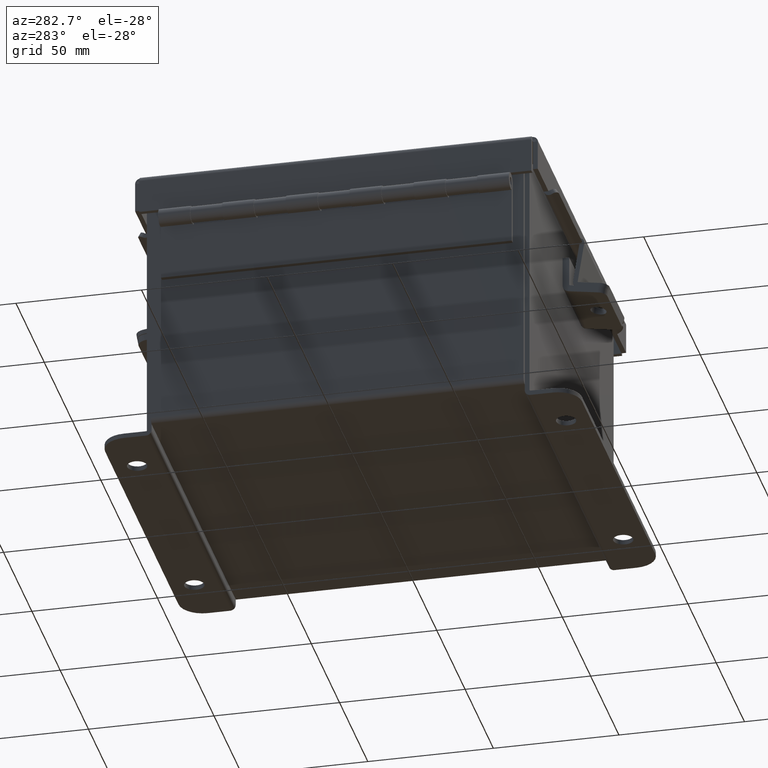
[diagram: clean part render]
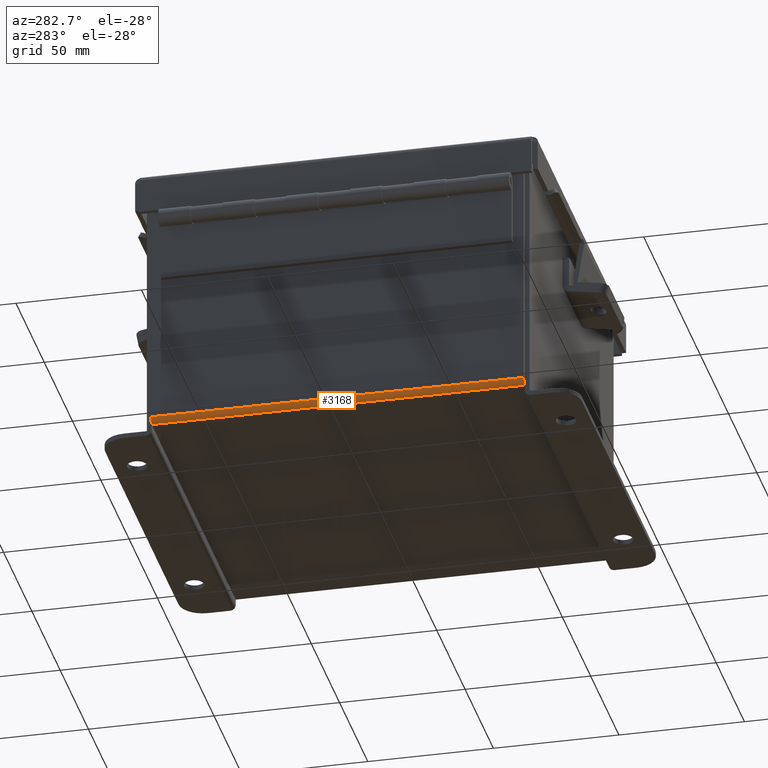
[diagram: same view with one face highlighted and labeled with its STEP entity id]
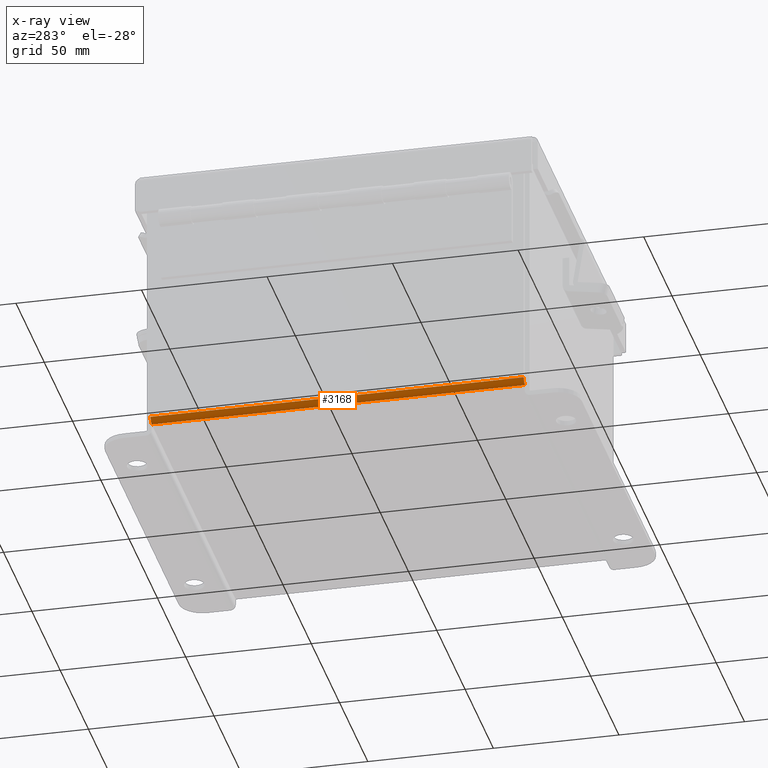
[diagram: x-ray of the same camera — body ghosted, the highlighted face saturated]
A machine part, auxiliary view. The second image highlights one B-rep face of the part: STEP entity #3168.
The next image is the same camera in x-ray: the body ghosted, the highlighted face saturated — about 0% of this face is hidden behind the body in this view.
In plain terms, the highlighted cylindrical surface (edge-blend (fillet) strip) has radius 2.2276 mm, axis along (0, -1, 0).
Its self-contained STEP definition (entity closure, byte-faithful):
#78 = CARTESIAN_POINT ( 'NONE',  ( -2.912299999999998800, -2.925299999999999600, 0.01300000000000066600 ) ) ;
#372 = CARTESIAN_POINT ( 'NONE',  ( -2.999999999999999100, 2.925300000000000500, 0.01299999999999984700 ) ) ;
#650 = CARTESIAN_POINT ( 'NONE',  ( -2.912299999999998800, 2.925300000000000500, 0.01300000000000018700 ) ) ;
#1169 = DIRECTION ( 'NONE',  ( -1.000000000000000000, 0.0000000000000000000, -3.553037762569317100E-015 ) ) ;
#1652 = CARTESIAN_POINT ( 'NONE',  ( -2.912299999999998800, -2.925299999999999100, 0.01300000000000066600 ) ) ;
#1749 = DIRECTION ( 'NONE',  ( 0.0000000000000000000, 0.0000000000000000000, -1.000000000000000000 ) ) ;
#2752 = DIRECTION ( 'NONE',  ( 0.0000000000000000000, 0.0000000000000000000, -1.000000000000000000 ) ) ;
#3117 = LINE ( 'NONE', #372, #4476 ) ;
#3168 = ADVANCED_FACE ( 'NONE', ( #4890 ), #4538, .T. ) ;
#3808 = ORIENTED_EDGE ( 'NONE', *, *, #10770, .F. ) ;
#4271 = CARTESIAN_POINT ( 'NONE',  ( -2.912299999999998800, 2.925300000000000500, -0.07470000000000000300 ) ) ;
#4476 = VECTOR ( 'NONE', #10214, 39.37007874015748100 ) ;
#4532 = EDGE_CURVE ( 'NONE', #12079, #11051, #10891, .T. ) ;
#4538 = CYLINDRICAL_SURFACE ( 'NONE', #12437, 0.08770000000000026400 ) ;
#4585 = CARTESIAN_POINT ( 'NONE',  ( -2.912299999999998800, -2.925299999999999600, -0.07469999999999943400 ) ) ;
#4890 = FACE_OUTER_BOUND ( 'NONE', #12332, .T. ) ;
#5637 = ORIENTED_EDGE ( 'NONE', *, *, #4532, .F. ) ;
#5793 = AXIS2_PLACEMENT_3D ( 'NONE', #1652, #9349, #2752 ) ;
#5986 = EDGE_CURVE ( 'NONE', #11129, #7544, #3117, .T. ) ;
#6163 = EDGE_CURVE ( 'NONE', #11051, #7544, #12381, .T. ) ;
#7544 = VERTEX_POINT ( 'NONE', #11810 ) ;
#7758 = DIRECTION ( 'NONE',  ( 0.0000000000000000000, -1.000000000000000000, 8.208677865577646300E-017 ) ) ;
#7997 = CARTESIAN_POINT ( 'NONE',  ( -2.912299999999998800, -2.925299999999999100, -0.07469999999999943400 ) ) ;
#8333 = DIRECTION ( 'NONE',  ( -0.0000000000000000000, 1.000000000000000000, -8.208677865577646300E-017 ) ) ;
#8347 = CARTESIAN_POINT ( 'NONE',  ( -2.999999999999999100, -2.925299999999999100, 0.01300000000000039300 ) ) ;
#8703 = AXIS2_PLACEMENT_3D ( 'NONE', #650, #8333, #1749 ) ;
#9349 = DIRECTION ( 'NONE',  ( 0.0000000000000000000, -1.000000000000000000, 8.208677865577646300E-017 ) ) ;
#10214 = DIRECTION ( 'NONE',  ( 3.312716323822492500E-031, 1.000000000000000000, -9.338693445678268600E-017 ) ) ;
#10329 = DIRECTION ( 'NONE',  ( -0.0000000000000000000, 1.000000000000000000, -8.208677865577646300E-017 ) ) ;
#10364 = CIRCLE ( 'NONE', #5793, 0.08770000000000009700 ) ;
#10394 = ORIENTED_EDGE ( 'NONE', *, *, #6163, .F. ) ;
#10702 = ORIENTED_EDGE ( 'NONE', *, *, #5986, .T. ) ;
#10770 = EDGE_CURVE ( 'NONE', #11129, #12079, #10364, .T. ) ;
#10891 = LINE ( 'NONE', #4585, #12419 ) ;
#11051 = VERTEX_POINT ( 'NONE', #4271 ) ;
#11129 = VERTEX_POINT ( 'NONE', #8347 ) ;
#11810 = CARTESIAN_POINT ( 'NONE',  ( -2.999999999999999100, 2.925300000000000500, 0.01299999999999987100 ) ) ;
#12079 = VERTEX_POINT ( 'NONE', #7997 ) ;
#12332 = EDGE_LOOP ( 'NONE', ( #5637, #3808, #10702, #10394 ) ) ;
#12381 = CIRCLE ( 'NONE', #8703, 0.08770000000000009700 ) ;
#12419 = VECTOR ( 'NONE', #10329, 39.37007874015748100 ) ;
#12437 = AXIS2_PLACEMENT_3D ( 'NONE', #78, #7758, #1169 ) ;